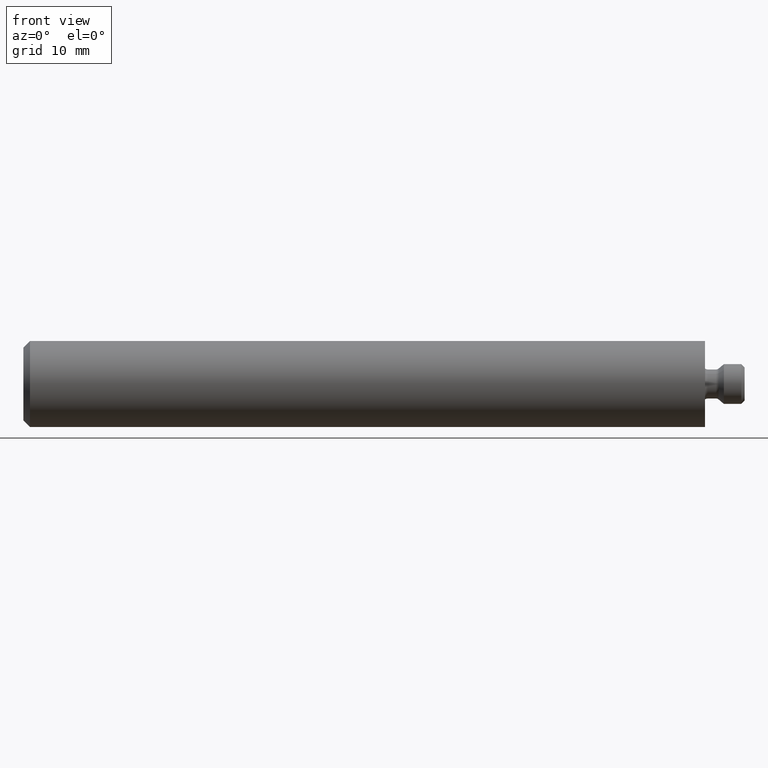
[diagram: clean part render]
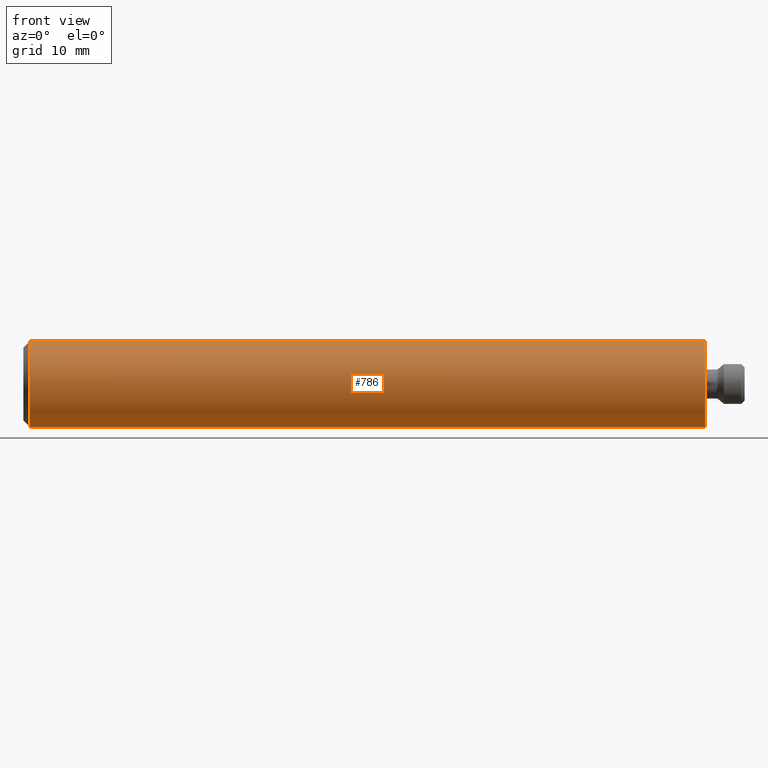
[diagram: same view with one face highlighted and labeled with its STEP entity id]
A machine part, front view. The second image highlights one B-rep face of the part: STEP entity #786.
In plain terms, the highlighted cylindrical surface (partial cylindrical patch) has radius 6.5 mm, axis along (1, 0, 0).
Its self-contained STEP definition (entity closure, byte-faithful):
#2 = VECTOR ( 'NONE', #662, 1000.000000000000000 ) ;
#6 = CYLINDRICAL_SURFACE ( 'NONE', #659, 6.499999999999984900 ) ;
#49 = DIRECTION ( 'NONE',  ( 1.000000000000000000, -0.0000000000000000000, -0.0000000000000000000 ) ) ;
#79 = ORIENTED_EDGE ( 'NONE', *, *, #203, .F. ) ;
#92 = VERTEX_POINT ( 'NONE', #545 ) ;
#124 = VERTEX_POINT ( 'NONE', #500 ) ;
#151 = EDGE_CURVE ( 'NONE', #124, #962, #176, .T. ) ;
#158 = ORIENTED_EDGE ( 'NONE', *, *, #447, .T. ) ;
#168 = AXIS2_PLACEMENT_3D ( 'NONE', #875, #359, #950 ) ;
#176 = LINE ( 'NONE', #668, #2 ) ;
#203 = EDGE_CURVE ( 'NONE', #92, #962, #1031, .T. ) ;
#223 = CARTESIAN_POINT ( 'NONE',  ( 0.0000000000000000000, 0.0000000000000000000, -6.499999999999984900 ) ) ;
#292 = CARTESIAN_POINT ( 'NONE',  ( 11.08730158730159100, 0.0000000000000000000, 0.0000000000000000000 ) ) ;
#359 = DIRECTION ( 'NONE',  ( 1.000000000000000000, -0.0000000000000000000, -0.0000000000000000000 ) ) ;
#420 = CIRCLE ( 'NONE', #168, 6.499999999999984900 ) ;
#447 = EDGE_CURVE ( 'NONE', #788, #124, #420, .T. ) ;
#462 = CARTESIAN_POINT ( 'NONE',  ( -102.0000000000000000, 7.960204194457777700E-016, 6.499999999999984900 ) ) ;
#500 = CARTESIAN_POINT ( 'NONE',  ( -102.0000000000000000, 0.0000000000000000000, -6.499999999999984900 ) ) ;
#518 = ORIENTED_EDGE ( 'NONE', *, *, #151, .T. ) ;
#523 = VECTOR ( 'NONE', #49, 1000.000000000000000 ) ;
#545 = CARTESIAN_POINT ( 'NONE',  ( 0.0000000000000000000, 7.960204194457777700E-016, 6.499999999999984900 ) ) ;
#557 = DIRECTION ( 'NONE',  ( 1.000000000000000000, -0.0000000000000000000, -0.0000000000000000000 ) ) ;
#659 = AXIS2_PLACEMENT_3D ( 'NONE', #292, #557, #1049 ) ;
#662 = DIRECTION ( 'NONE',  ( 1.000000000000000000, -0.0000000000000000000, -0.0000000000000000000 ) ) ;
#668 = CARTESIAN_POINT ( 'NONE',  ( 11.08730158730159100, 0.0000000000000000000, -6.499999999999984900 ) ) ;
#734 = EDGE_LOOP ( 'NONE', ( #854, #158, #518, #79 ) ) ;
#741 = EDGE_CURVE ( 'NONE', #788, #92, #964, .T. ) ;
#786 = ADVANCED_FACE ( 'NONE', ( #940 ), #6, .T. ) ;
#788 = VERTEX_POINT ( 'NONE', #462 ) ;
#822 = CARTESIAN_POINT ( 'NONE',  ( 11.08730158730159100, 7.960204194457777700E-016, 6.499999999999984900 ) ) ;
#854 = ORIENTED_EDGE ( 'NONE', *, *, #741, .F. ) ;
#875 = CARTESIAN_POINT ( 'NONE',  ( -102.0000000000000000, 0.0000000000000000000, 0.0000000000000000000 ) ) ;
#890 = CARTESIAN_POINT ( 'NONE',  ( 0.0000000000000000000, 0.0000000000000000000, 0.0000000000000000000 ) ) ;
#899 = DIRECTION ( 'NONE',  ( 1.000000000000000000, -0.0000000000000000000, -0.0000000000000000000 ) ) ;
#912 = DIRECTION ( 'NONE',  ( 0.0000000000000000000, 0.0000000000000000000, -1.000000000000000000 ) ) ;
#926 = AXIS2_PLACEMENT_3D ( 'NONE', #890, #899, #912 ) ;
#940 = FACE_OUTER_BOUND ( 'NONE', #734, .T. ) ;
#950 = DIRECTION ( 'NONE',  ( 0.0000000000000000000, 0.0000000000000000000, -1.000000000000000000 ) ) ;
#962 = VERTEX_POINT ( 'NONE', #223 ) ;
#964 = LINE ( 'NONE', #822, #523 ) ;
#1031 = CIRCLE ( 'NONE', #926, 6.499999999999984900 ) ;
#1049 = DIRECTION ( 'NONE',  ( 0.0000000000000000000, 0.0000000000000000000, -1.000000000000000000 ) ) ;